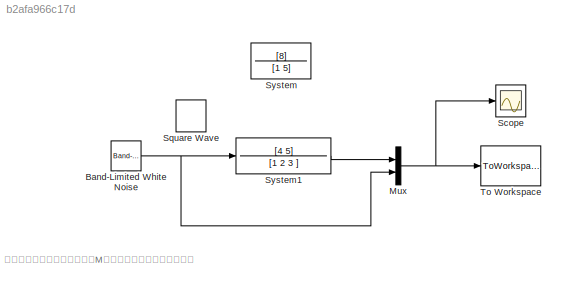
MODEL slx_b2afa966c17d
KIND model
CONFIG AbsTol = auto
CONFIG EnableMultiTasking = off
CONFIG FixedStep = 0.1
CONFIG MaxStep = auto
CONFIG MinStep = auto
CONFIG RelTol = 1e-3
CONFIG SampleTimeConstraint = Unconstrained
CONFIG SolverName = ode4
CONFIG StartTime = 0.0
CONFIG StopTime = 10
BLOCK [Reference] Band-Limited White Noise  REF=simulink/Sources/Band-Limited
White Noise
  SourceBlock = simulink/Sources/Band-Limited\nWhite Noise
  SourceType = Band-Limited White Noise.
BLOCK [Mux] Mux
  DisplayOption = bar
  Inputs = 2
BLOCK [Scope] Scope
  Floating = off
  NumInputPorts = 1
  ScopeSpecificationString = Simulink.scopes.TimeScopeBlockCfg('CurrentConfiguration', extmgr.ConfigurationSet(extmgr.Configuration('Core','General UI',true),extmgr.Configuration('Core','Source UI',true),extmgr.Configuration('Sources','WiredSimulink',true),extmgr.Configuration('Visuals','Time Domain',true,'SerializedDisplays',{struct('MinYLimReal','-14.38461','MaxYLimReal','15.45571','YLabelReal','','MinYLimMag','0.00000','Ma...<+1435ch>
BLOCK [DiscretePulseGenerator] Square Wave
  Period = 5
  PulseType = Time based
  PulseWidth = 50
BLOCK [TransferFcn] System
  ContinuousStateAttributes = 'Plant'
  Denominator = [1 5]
  Numerator = [8]
BLOCK [TransferFcn] System1
  ContinuousStateAttributes = 'Plant'
  Denominator = [1 2 3 ]
  Numerator = [4 5]
BLOCK [ToWorkspace] To Workspace
  FixptAsFi = on
  MaxDataPoints = inf
  SampleTime = -1
  SaveFormat = Timeseries
  VariableName = dataout
ANNOTATION (root): 没有误差输入时，不需要使用M序列就可以得到比较好的效果
NET Band-Limited White Noise:1 -> Mux:2, System1:1
NET Mux:1 -> Scope:1, To Workspace:1
LINE System1:1 -> Mux:1
note: NET lines group one-source signal fan-out (src -> all destinations, sorted); 1:1 wires keep LINE
